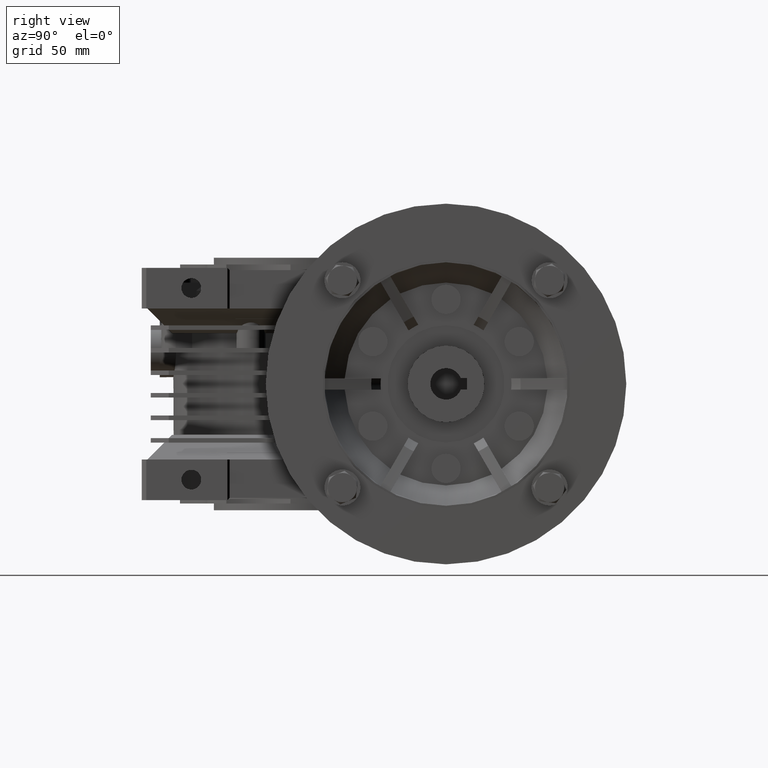
[diagram: clean part render]
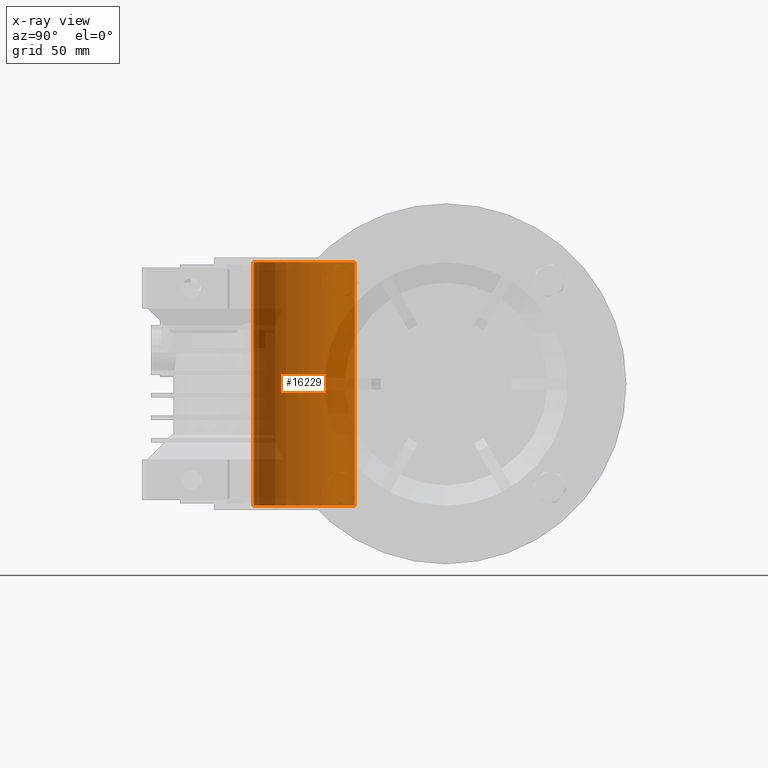
[diagram: x-ray — body ghosted, one internal face saturated and labeled with its STEP entity id]
A machine part, right view, then the same camera in x-ray: the body is ghosted and one INTERNAL B-rep face — a face not visible from any outside direction — is saturated and labeled: STEP entity #16229.
In plain terms, the highlighted cylindrical surface (partial cylindrical patch) has radius 22.5 mm, axis along (0, 0, 1).
Its self-contained STEP definition (entity closure, byte-faithful):
#626 = LINE ( 'NONE', #38406, #29356 ) ;
#958 = AXIS2_PLACEMENT_3D ( 'NONE', #9892, #14247, #44000 ) ;
#2264 = AXIS2_PLACEMENT_3D ( 'NONE', #13299, #16720, #27693 ) ;
#2356 = CYLINDRICAL_SURFACE ( 'NONE', #958, 22.50000000000000000 ) ;
#5802 = CARTESIAN_POINT ( 'NONE',  ( 0.000000000000000000, 22.50000000000000000, -54.00000000000000000 ) ) ;
#6494 = EDGE_LOOP ( 'NONE', ( #15025, #39322, #46975, #45889 ) ) ;
#6660 = CARTESIAN_POINT ( 'NONE',  ( 0.000000000000000000, 0.000000000000000000, -54.00000000000000000 ) ) ;
#9892 = CARTESIAN_POINT ( 'NONE',  ( 0.000000000000000000, 0.000000000000000000, -59.00000000000000000 ) ) ;
#10042 = VERTEX_POINT ( 'NONE', #39956 ) ;
#10231 = CARTESIAN_POINT ( 'NONE',  ( 0.000000000000000000, 22.50000000000000000, 54.00000000000000000 ) ) ;
#10806 = EDGE_CURVE ( 'NONE', #33745, #35848, #12840, .T. ) ;
#12840 = LINE ( 'NONE', #15779, #15288 ) ;
#12890 = EDGE_CURVE ( 'NONE', #13728, #35848, #27964, .T. ) ;
#13299 = CARTESIAN_POINT ( 'NONE',  ( 0.000000000000000000, 0.000000000000000000, 54.00000000000000000 ) ) ;
#13728 = VERTEX_POINT ( 'NONE', #32434 ) ;
#14247 = DIRECTION ( 'NONE',  ( 0.000000000000000000, 0.000000000000000000, 1.000000000000000000 ) ) ;
#15025 = ORIENTED_EDGE ( 'NONE', *, *, #26314, .F. ) ;
#15288 = VECTOR ( 'NONE', #31665, 1000.000000000000000 ) ;
#15779 = CARTESIAN_POINT ( 'NONE',  ( 0.000000000000000000, 22.50000000000000000, -59.00000000000000000 ) ) ;
#16229 = ADVANCED_FACE ( 'NONE', ( #46674 ), #2356, .F. ) ;
#16720 = DIRECTION ( 'NONE',  ( 0.000000000000000000, 0.000000000000000000, -1.000000000000000000 ) ) ;
#18080 = EDGE_CURVE ( 'NONE', #33745, #10042, #21383, .T. ) ;
#20568 = AXIS2_PLACEMENT_3D ( 'NONE', #6660, #32525, #32761 ) ;
#21383 = CIRCLE ( 'NONE', #20568, 22.50000000000000000 ) ;
#26314 = EDGE_CURVE ( 'NONE', #10042, #13728, #626, .T. ) ;
#27168 = DIRECTION ( 'NONE',  ( 0.000000000000000000, 0.000000000000000000, 1.000000000000000000 ) ) ;
#27693 = DIRECTION ( 'NONE',  ( 0.000000000000000000, 1.000000000000000000, 0.000000000000000000 ) ) ;
#27964 = CIRCLE ( 'NONE', #2264, 22.50000000000000000 ) ;
#29356 = VECTOR ( 'NONE', #27168, 1000.000000000000000 ) ;
#31665 = DIRECTION ( 'NONE',  ( 0.000000000000000000, 0.000000000000000000, 1.000000000000000000 ) ) ;
#32434 = CARTESIAN_POINT ( 'NONE',  ( -2.755455298081544778E-15, -22.50000000000000000, 54.00000000000000000 ) ) ;
#32525 = DIRECTION ( 'NONE',  ( 0.000000000000000000, 0.000000000000000000, 1.000000000000000000 ) ) ;
#32761 = DIRECTION ( 'NONE',  ( 0.000000000000000000, 1.000000000000000000, 0.000000000000000000 ) ) ;
#33745 = VERTEX_POINT ( 'NONE', #5802 ) ;
#35848 = VERTEX_POINT ( 'NONE', #10231 ) ;
#38406 = CARTESIAN_POINT ( 'NONE',  ( -2.755455298081544778E-15, -22.50000000000000000, -59.00000000000000000 ) ) ;
#39322 = ORIENTED_EDGE ( 'NONE', *, *, #18080, .F. ) ;
#39956 = CARTESIAN_POINT ( 'NONE',  ( -2.755455298081544778E-15, -22.50000000000000000, -54.00000000000000000 ) ) ;
#44000 = DIRECTION ( 'NONE',  ( 0.000000000000000000, 1.000000000000000000, 0.000000000000000000 ) ) ;
#45889 = ORIENTED_EDGE ( 'NONE', *, *, #12890, .F. ) ;
#46674 = FACE_OUTER_BOUND ( 'NONE', #6494, .T. ) ;
#46975 = ORIENTED_EDGE ( 'NONE', *, *, #10806, .T. ) ;